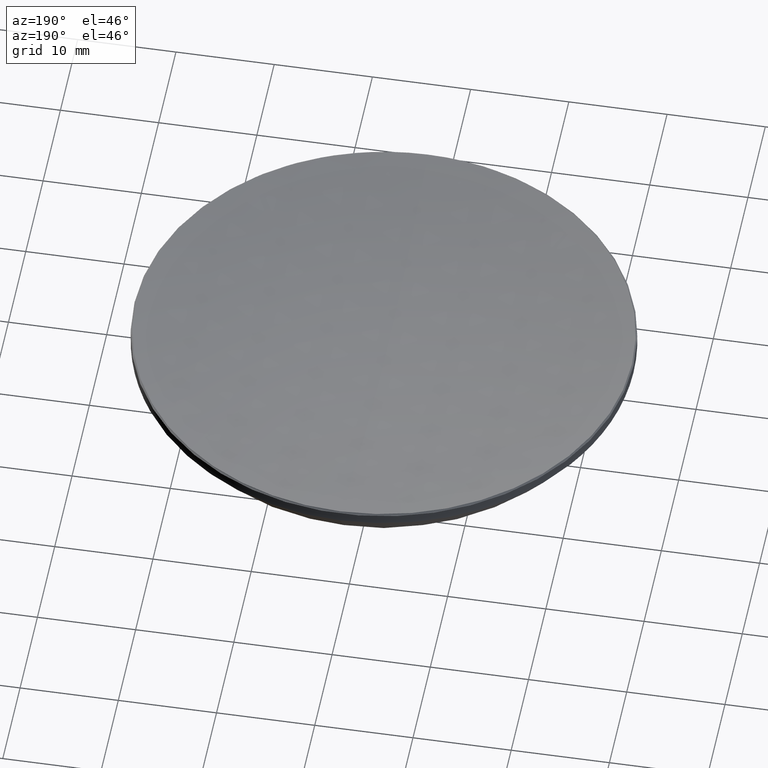
[diagram: clean part render]
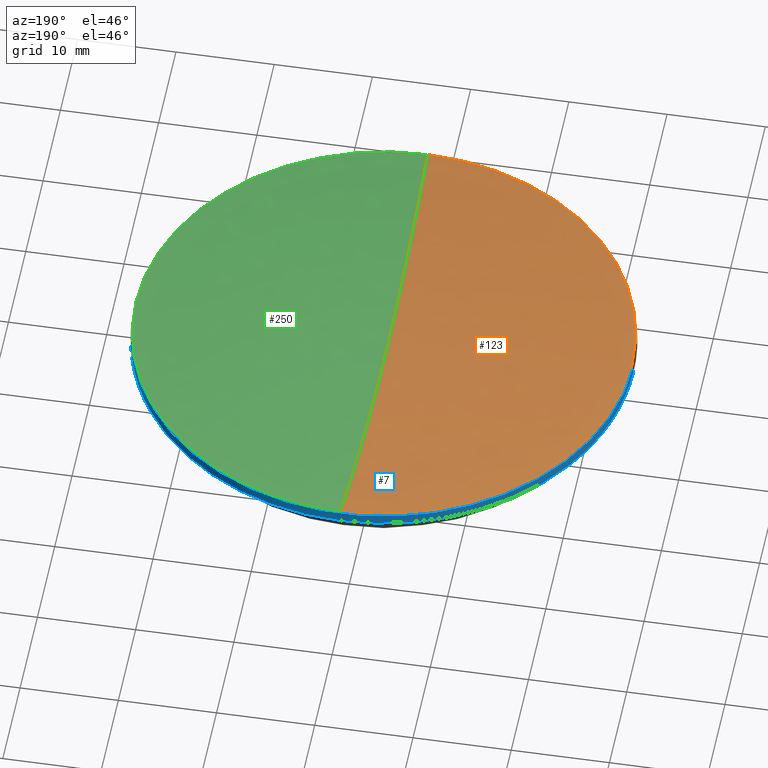
[diagram: same view with three faces highlighted in distinct colors, each labeled with its STEP entity id]
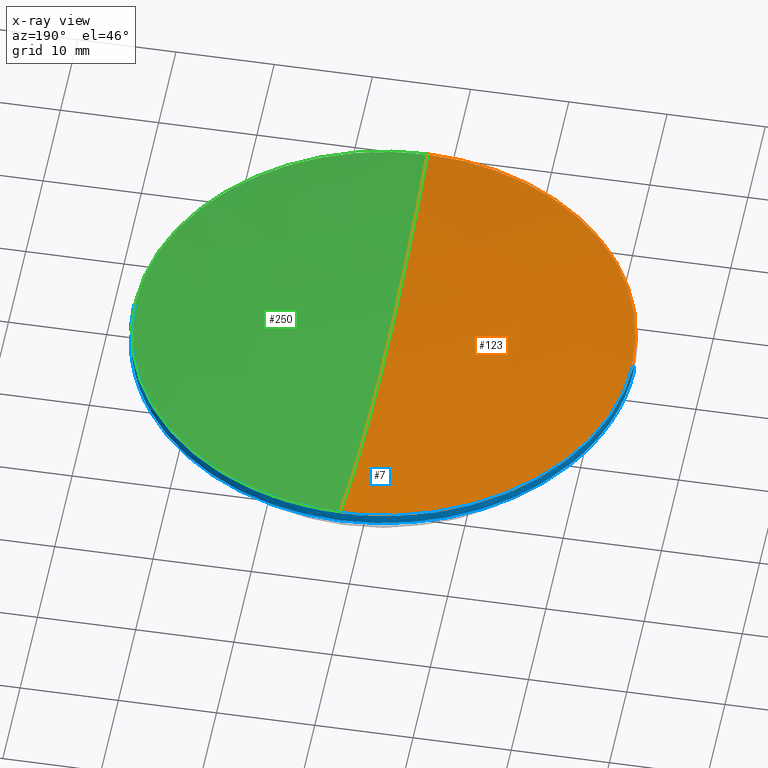
[diagram: x-ray of the same camera — body ghosted, the three highlighted faces saturated]
A machine part, auxiliary view with three faces highlighted in distinct colors.
The next image is the same camera in x-ray (body ghosted, the three faces saturated) — at least one of them is partly hidden behind the body in this view.
Their STEP definitions:

[orange] entity #123 — the highlighted spherical surface has radius 80.94 mm.
#15 = AXIS2_PLACEMENT_3D ( 'NONE', #173, #119, #70 ) ;
#18 = EDGE_CURVE ( 'NONE', #126, #280, #57, .T. ) ;
#26 = CARTESIAN_POINT ( 'NONE',  ( -3.092179140678477812E-15, -25.24955883468910045, 16.15044116531086260 ) ) ;
#55 = ORIENTED_EDGE ( 'NONE', *, *, #18, .F. ) ;
#56 = AXIS2_PLACEMENT_3D ( 'NONE', #86, #219, #230 ) ;
#57 = CIRCLE ( 'NONE', #71, 80.93999999999998352 ) ;
#63 = EDGE_CURVE ( 'NONE', #253, #151, #282, .T. ) ;
#67 = DIRECTION ( 'NONE',  ( -1.224646799147353207E-16, -1.000000000000000000, 0.000000000000000000 ) ) ;
#70 = DIRECTION ( 'NONE',  ( 0.000000000000000000, 0.000000000000000000, -1.000000000000000000 ) ) ;
#71 = AXIS2_PLACEMENT_3D ( 'NONE', #158, #202, #67 ) ;
#85 = CARTESIAN_POINT ( 'NONE',  ( -25.24955883468912532, 0.000000000000000000, 16.15044116531086260 ) ) ;
#86 = CARTESIAN_POINT ( 'NONE',  ( 0.000000000000000000, 0.000000000000000000, 16.15044116531086260 ) ) ;
#98 = CIRCLE ( 'NONE', #15, 80.93999999999998352 ) ;
#114 = CARTESIAN_POINT ( 'NONE',  ( 0.000000000000000000, 0.000000000000000000, 16.15044116531086260 ) ) ;
#119 = DIRECTION ( 'NONE',  ( 1.000000000000000000, 0.000000000000000000, 0.000000000000000000 ) ) ;
#122 = EDGE_CURVE ( 'NONE', #126, #253, #98, .T. ) ;
#123 = ADVANCED_FACE ( 'NONE', ( #248 ), #131, .F. ) ;
#126 = VERTEX_POINT ( 'NONE', #139 ) ;
#131 = SPHERICAL_SURFACE ( 'NONE', #225, 80.93999999999998352 ) ;
#139 = CARTESIAN_POINT ( 'NONE',  ( 0.000000000000000000, 4.956145596149337094E-15, 12.11130838183563441 ) ) ;
#149 = ORIENTED_EDGE ( 'NONE', *, *, #122, .T. ) ;
#151 = VERTEX_POINT ( 'NONE', #85 ) ;
#152 = DIRECTION ( 'NONE',  ( 0.000000000000000000, 1.000000000000000000, 0.000000000000000000 ) ) ;
#158 = CARTESIAN_POINT ( 'NONE',  ( 0.000000000000000000, 0.000000000000000000, 93.05130838183561082 ) ) ;
#162 = CARTESIAN_POINT ( 'NONE',  ( 0.000000000000000000, 0.000000000000000000, 93.05130838183561082 ) ) ;
#163 = AXIS2_PLACEMENT_3D ( 'NONE', #114, #221, #216 ) ;
#168 = ORIENTED_EDGE ( 'NONE', *, *, #211, .T. ) ;
#173 = CARTESIAN_POINT ( 'NONE',  ( 0.000000000000000000, 0.000000000000000000, 93.05130838183561082 ) ) ;
#187 = CARTESIAN_POINT ( 'NONE',  ( 0.000000000000000000, 25.24955883468910045, 16.15044116531086260 ) ) ;
#202 = DIRECTION ( 'NONE',  ( -1.000000000000000000, 1.224646799147353207E-16, 0.000000000000000000 ) ) ;
#211 = EDGE_CURVE ( 'NONE', #151, #280, #252, .T. ) ;
#216 = DIRECTION ( 'NONE',  ( 1.000000000000000000, 0.000000000000000000, 0.000000000000000000 ) ) ;
#219 = DIRECTION ( 'NONE',  ( -0.000000000000000000, -0.000000000000000000, 1.000000000000000000 ) ) ;
#221 = DIRECTION ( 'NONE',  ( -0.000000000000000000, -0.000000000000000000, 1.000000000000000000 ) ) ;
#225 = AXIS2_PLACEMENT_3D ( 'NONE', #162, #261, #152 ) ;
#230 = DIRECTION ( 'NONE',  ( 1.000000000000000000, 0.000000000000000000, 0.000000000000000000 ) ) ;
#248 = FACE_OUTER_BOUND ( 'NONE', #260, .T. ) ;
#252 = CIRCLE ( 'NONE', #56, 25.24955883468912532 ) ;
#253 = VERTEX_POINT ( 'NONE', #187 ) ;
#260 = EDGE_LOOP ( 'NONE', ( #55, #149, #276, #168 ) ) ;
#261 = DIRECTION ( 'NONE',  ( -1.000000000000000000, 0.000000000000000000, 0.000000000000000000 ) ) ;
#276 = ORIENTED_EDGE ( 'NONE', *, *, #63, .T. ) ;
#280 = VERTEX_POINT ( 'NONE', #26 ) ;
#282 = CIRCLE ( 'NONE', #163, 25.24955883468912532 ) ;

[blue] entity #7 — the highlighted cylindrical surface (partial cylindrical patch) has radius 25.4 mm, axis along (-0, -0, -1).
#5 = FACE_OUTER_BOUND ( 'NONE', #82, .T. ) ;
#7 = ADVANCED_FACE ( 'NONE', ( #5 ), #224, .T. ) ;
#12 = AXIS2_PLACEMENT_3D ( 'NONE', #30, #91, #246 ) ;
#20 = VERTEX_POINT ( 'NONE', #47 ) ;
#27 = EDGE_CURVE ( 'NONE', #256, #20, #247, .T. ) ;
#30 = CARTESIAN_POINT ( 'NONE',  ( 0.000000000000000000, 0.000000000000000000, 20.00000000000000000 ) ) ;
#37 = VERTEX_POINT ( 'NONE', #111 ) ;
#43 = EDGE_CURVE ( 'NONE', #20, #37, #220, .T. ) ;
#47 = CARTESIAN_POINT ( 'NONE',  ( 25.39999999999999503, 3.110602869834276471E-15, 15.00000000000000000 ) ) ;
#50 = DIRECTION ( 'NONE',  ( 1.000000000000000000, 0.000000000000000000, 0.000000000000000000 ) ) ;
#53 = DIRECTION ( 'NONE',  ( 1.000000000000000000, 0.000000000000000000, 0.000000000000000000 ) ) ;
#58 = CIRCLE ( 'NONE', #135, 25.39999999999999503 ) ;
#59 = VERTEX_POINT ( 'NONE', #226 ) ;
#61 = ORIENTED_EDGE ( 'NONE', *, *, #231, .T. ) ;
#82 = EDGE_LOOP ( 'NONE', ( #61, #121, #125, #128, #240 ) ) ;
#90 = DIRECTION ( 'NONE',  ( -0.000000000000000000, -0.000000000000000000, 1.000000000000000000 ) ) ;
#91 = DIRECTION ( 'NONE',  ( -0.000000000000000000, -0.000000000000000000, -1.000000000000000000 ) ) ;
#95 = LINE ( 'NONE', #165, #148 ) ;
#99 = CIRCLE ( 'NONE', #264, 25.39999999999999858 ) ;
#110 = CARTESIAN_POINT ( 'NONE',  ( 0.000000000000000000, 0.000000000000000000, 15.00000000000000000 ) ) ;
#111 = CARTESIAN_POINT ( 'NONE',  ( 0.000000000000000000, 25.39999999999999858, 15.00000000000000178 ) ) ;
#113 = VERTEX_POINT ( 'NONE', #249 ) ;
#116 = DIRECTION ( 'NONE',  ( -0.000000000000000000, -0.000000000000000000, -1.000000000000000000 ) ) ;
#120 = AXIS2_PLACEMENT_3D ( 'NONE', #267, #90, #50 ) ;
#121 = ORIENTED_EDGE ( 'NONE', *, *, #27, .T. ) ;
#125 = ORIENTED_EDGE ( 'NONE', *, *, #43, .T. ) ;
#128 = ORIENTED_EDGE ( 'NONE', *, *, #188, .T. ) ;
#134 = DIRECTION ( 'NONE',  ( -0.000000000000000000, -0.000000000000000000, -1.000000000000000000 ) ) ;
#135 = AXIS2_PLACEMENT_3D ( 'NONE', #110, #140, #53 ) ;
#140 = DIRECTION ( 'NONE',  ( -0.000000000000000000, -0.000000000000000000, 1.000000000000000000 ) ) ;
#148 = VECTOR ( 'NONE', #116, 1000.000000000000000 ) ;
#155 = DIRECTION ( 'NONE',  ( 1.000000000000000000, 0.000000000000000000, 0.000000000000000000 ) ) ;
#165 = CARTESIAN_POINT ( 'NONE',  ( -25.39999999999999858, 0.000000000000000000, 20.00000000000000000 ) ) ;
#176 = DIRECTION ( 'NONE',  ( 0.000000000000000000, 0.000000000000000000, -1.000000000000000000 ) ) ;
#178 = EDGE_CURVE ( 'NONE', #59, #113, #95, .T. ) ;
#183 = CARTESIAN_POINT ( 'NONE',  ( 25.39999999999999858, 3.110602869834276865E-15, 20.00000000000000000 ) ) ;
#188 = EDGE_CURVE ( 'NONE', #37, #113, #58, .T. ) ;
#197 = VECTOR ( 'NONE', #134, 1000.000000000000000 ) ;
#220 = CIRCLE ( 'NONE', #120, 25.39999999999999503 ) ;
#224 = CYLINDRICAL_SURFACE ( 'NONE', #12, 25.39999999999999858 ) ;
#226 = CARTESIAN_POINT ( 'NONE',  ( -25.39999999999999858, 0.000000000000000000, 15.99999999999997335 ) ) ;
#231 = EDGE_CURVE ( 'NONE', #59, #256, #99, .T. ) ;
#232 = CARTESIAN_POINT ( 'NONE',  ( 0.000000000000000000, 0.000000000000000000, 15.99999999999997335 ) ) ;
#240 = ORIENTED_EDGE ( 'NONE', *, *, #178, .F. ) ;
#246 = DIRECTION ( 'NONE',  ( -1.000000000000000000, 0.000000000000000000, 0.000000000000000000 ) ) ;
#247 = LINE ( 'NONE', #183, #197 ) ;
#249 = CARTESIAN_POINT ( 'NONE',  ( -25.39999999999999503, 0.000000000000000000, 15.00000000000000000 ) ) ;
#256 = VERTEX_POINT ( 'NONE', #271 ) ;
#264 = AXIS2_PLACEMENT_3D ( 'NONE', #232, #176, #155 ) ;
#267 = CARTESIAN_POINT ( 'NONE',  ( 0.000000000000000000, 0.000000000000000000, 15.00000000000000000 ) ) ;
#271 = CARTESIAN_POINT ( 'NONE',  ( 25.39999999999999858, 3.110602869834276865E-15, 15.99999999999997335 ) ) ;

[green] entity #250 — the highlighted spherical surface has radius 80.94 mm.
#8 = EDGE_CURVE ( 'NONE', #102, #253, #270, .T. ) ;
#13 = CARTESIAN_POINT ( 'NONE',  ( 0.000000000000000000, 0.000000000000000000, 93.05130838183561082 ) ) ;
#15 = AXIS2_PLACEMENT_3D ( 'NONE', #173, #119, #70 ) ;
#18 = EDGE_CURVE ( 'NONE', #126, #280, #57, .T. ) ;
#26 = CARTESIAN_POINT ( 'NONE',  ( -3.092179140678477812E-15, -25.24955883468910045, 16.15044116531086260 ) ) ;
#34 = SPHERICAL_SURFACE ( 'NONE', #143, 80.93999999999998352 ) ;
#57 = CIRCLE ( 'NONE', #71, 80.93999999999998352 ) ;
#62 = CARTESIAN_POINT ( 'NONE',  ( 25.24955883468912532, 3.101391005256379311E-15, 16.15044116531086260 ) ) ;
#67 = DIRECTION ( 'NONE',  ( -1.224646799147353207E-16, -1.000000000000000000, 0.000000000000000000 ) ) ;
#69 = ORIENTED_EDGE ( 'NONE', *, *, #8, .T. ) ;
#70 = DIRECTION ( 'NONE',  ( 0.000000000000000000, 0.000000000000000000, -1.000000000000000000 ) ) ;
#71 = AXIS2_PLACEMENT_3D ( 'NONE', #158, #202, #67 ) ;
#97 = DIRECTION ( 'NONE',  ( 0.000000000000000000, 1.000000000000000000, 0.000000000000000000 ) ) ;
#98 = CIRCLE ( 'NONE', #15, 80.93999999999998352 ) ;
#102 = VERTEX_POINT ( 'NONE', #62 ) ;
#117 = AXIS2_PLACEMENT_3D ( 'NONE', #263, #130, #207 ) ;
#119 = DIRECTION ( 'NONE',  ( 1.000000000000000000, 0.000000000000000000, 0.000000000000000000 ) ) ;
#122 = EDGE_CURVE ( 'NONE', #126, #253, #98, .T. ) ;
#126 = VERTEX_POINT ( 'NONE', #139 ) ;
#130 = DIRECTION ( 'NONE',  ( -0.000000000000000000, -0.000000000000000000, 1.000000000000000000 ) ) ;
#136 = DIRECTION ( 'NONE',  ( 1.000000000000000000, 0.000000000000000000, 0.000000000000000000 ) ) ;
#139 = CARTESIAN_POINT ( 'NONE',  ( 0.000000000000000000, 4.956145596149337094E-15, 12.11130838183563441 ) ) ;
#143 = AXIS2_PLACEMENT_3D ( 'NONE', #13, #199, #97 ) ;
#146 = AXIS2_PLACEMENT_3D ( 'NONE', #266, #204, #136 ) ;
#158 = CARTESIAN_POINT ( 'NONE',  ( 0.000000000000000000, 0.000000000000000000, 93.05130838183561082 ) ) ;
#173 = CARTESIAN_POINT ( 'NONE',  ( 0.000000000000000000, 0.000000000000000000, 93.05130838183561082 ) ) ;
#174 = ORIENTED_EDGE ( 'NONE', *, *, #122, .F. ) ;
#177 = CIRCLE ( 'NONE', #117, 25.24955883468912532 ) ;
#187 = CARTESIAN_POINT ( 'NONE',  ( 0.000000000000000000, 25.24955883468910045, 16.15044116531086260 ) ) ;
#191 = EDGE_LOOP ( 'NONE', ( #174, #259, #217, #69 ) ) ;
#199 = DIRECTION ( 'NONE',  ( -1.000000000000000000, 0.000000000000000000, 0.000000000000000000 ) ) ;
#200 = EDGE_CURVE ( 'NONE', #280, #102, #177, .T. ) ;
#202 = DIRECTION ( 'NONE',  ( -1.000000000000000000, 1.224646799147353207E-16, 0.000000000000000000 ) ) ;
#204 = DIRECTION ( 'NONE',  ( -0.000000000000000000, -0.000000000000000000, 1.000000000000000000 ) ) ;
#207 = DIRECTION ( 'NONE',  ( 1.000000000000000000, 0.000000000000000000, 0.000000000000000000 ) ) ;
#209 = FACE_OUTER_BOUND ( 'NONE', #191, .T. ) ;
#217 = ORIENTED_EDGE ( 'NONE', *, *, #200, .T. ) ;
#250 = ADVANCED_FACE ( 'NONE', ( #209 ), #34, .F. ) ;
#253 = VERTEX_POINT ( 'NONE', #187 ) ;
#259 = ORIENTED_EDGE ( 'NONE', *, *, #18, .T. ) ;
#263 = CARTESIAN_POINT ( 'NONE',  ( 0.000000000000000000, 0.000000000000000000, 16.15044116531086260 ) ) ;
#266 = CARTESIAN_POINT ( 'NONE',  ( 0.000000000000000000, 0.000000000000000000, 16.15044116531086260 ) ) ;
#270 = CIRCLE ( 'NONE', #146, 25.24955883468912532 ) ;
#280 = VERTEX_POINT ( 'NONE', #26 ) ;